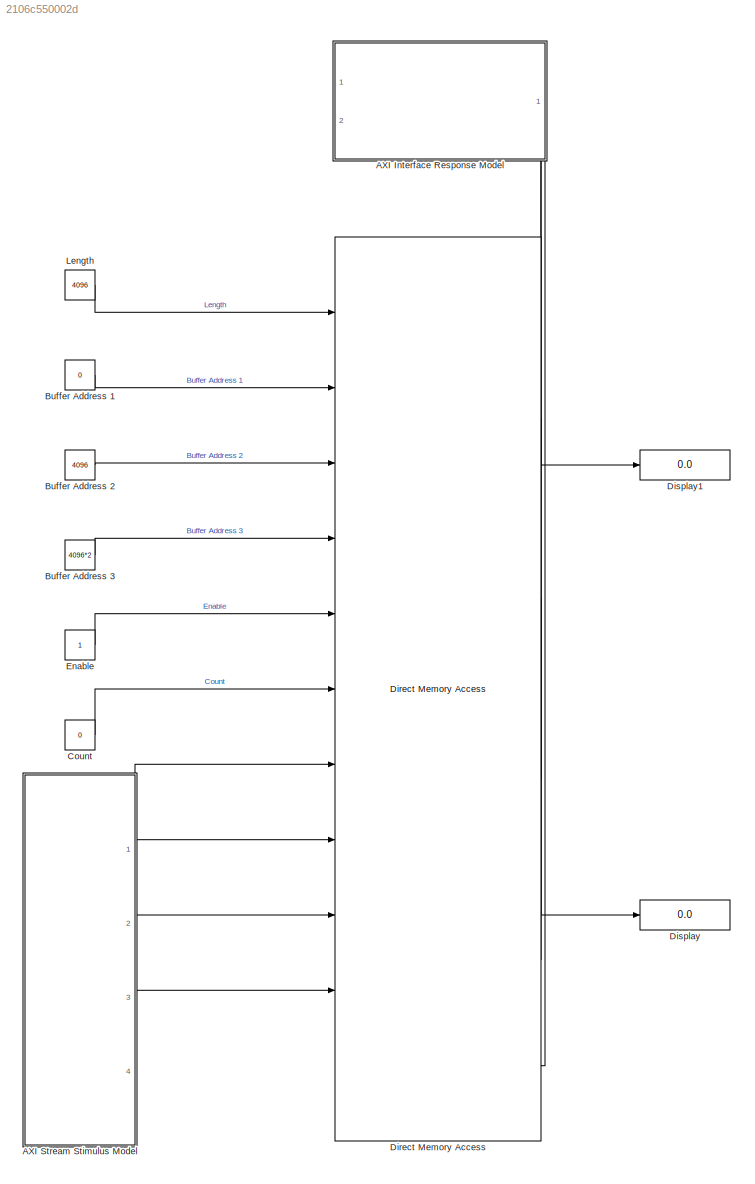
MODEL slx_2106c550002d
KIND model
CONFIG AbsTol = auto
CONFIG EnableMultiTasking = off
CONFIG FixedStep = auto
CONFIG InitFcn = fs = 256e6;
CONFIG MaxStep = auto
CONFIG MinStep = auto
CONFIG RelTol = 1e-3
CONFIG SampleTimeConstraint = Unconstrained
CONFIG Solver = VariableStepAuto
CONFIG SolverName = VariableStepAuto
CONFIG StartTime = 0.0
CONFIG StopTime = (2*8192)/256e6
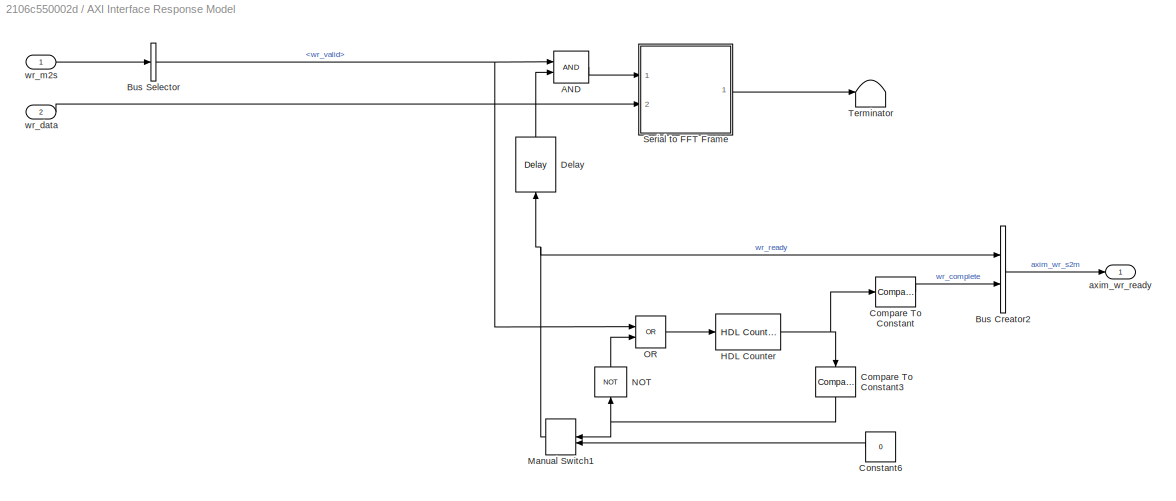
BLOCK [SubSystem] AXI Interface Response Model
  NameLocation = top
  PortSchema = {"entries":[{"content":{"sides":[{"content":{"connectorIds":[]},"type":"ConnectorPlacement.EquallySpacedRectSide","uuid":"6953abbe-a6d5-4686-b276-b89fe5e6bb23"},{"content":{"connectorIds":[],"side":"RIGHT"},"type":"ConnectorPlacement.EquallySpacedRectSide","uuid":"539ff6ac-c243-4534-87d0-888ff9534a8b"},{"content":{"connectorIds":[],"side":"TOP"},"type":"ConnectorPlacement.EquallySpacedRectSide","u...<+393ch>
  Ports = [2, 1]
  RequestExecContextInheritance = off
BLOCK [Logic] AXI Interface Response Model/AND
  AllPortsSameDT = off
  IconShape = distinctive
  OutDataTypeStr = boolean
  Ports = [2, 1]
BLOCK [BusCreator] AXI Interface Response Model/Bus Creator2
  DisplayOption = bar
  InheritFromInputs = on
  Inputs = 2
  Ports = [2, 1]
BLOCK [BusSelector] AXI Interface Response Model/Bus Selector
  OutputSignals = wr_valid
  Ports = [1, 1]
BLOCK [Reference] AXI Interface Response Model/Compare To Constant  REF=simulink/Logic and Bit
Operations/Compare
To Constant
  Ports = [1, 1]
  SourceBlock = simulink/Logic and Bit\nOperations/Compare\nTo Constant
  SourceProductBaseCode = SL
  SourceType = Compare To Constant
BLOCK [Reference] AXI Interface Response Model/Compare To Constant3  REF=simulink/Logic and Bit
Operations/Compare
To Constant
  NameLocation = left
  Ports = [1, 1]
  SourceBlock = simulink/Logic and Bit\nOperations/Compare\nTo Constant
  SourceProductBaseCode = SL
  SourceType = Compare To Constant
BLOCK [Constant] AXI Interface Response Model/Constant6
  OutDataTypeStr = boolean
  SampleTime = -1
  Value = 0
BLOCK [Delay] AXI Interface Response Model/Delay
  DelayLength = 1
  InitialCondition = 0
  InputPortMap = u0
  NameLocation = right
  Ports = [1, 1]
  UseCircularBuffer = on
  UserDataPersistent = on
BLOCK [Reference] AXI Interface Response Model/HDL Counter  REF=hdlsllib/Sources/HDL Counter
  Ports = [1, 1]
  SourceBlock = hdlsllib/Sources/HDL Counter
  SourceProductBaseCode = SL
  SourceType = HDL Counter
BLOCK [ManualSwitch] AXI Interface Response Model/Manual Switch1
  NameLocation = top
BLOCK [Logic] AXI Interface Response Model/NOT
  AllPortsSameDT = off
  IconShape = distinctive
  NameLocation = right
  Operator = NOT
  OutDataTypeStr = boolean
  Ports = [1, 1]
BLOCK [Logic] AXI Interface Response Model/OR
  AllPortsSameDT = off
  IconShape = distinctive
  Operator = OR
  OutDataTypeStr = boolean
  Ports = [2, 1]
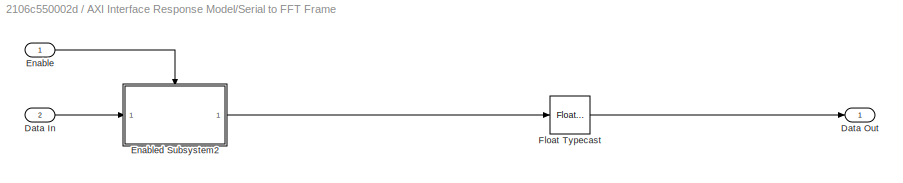
BLOCK [SubSystem] AXI Interface Response Model/Serial to FFT Frame
  Ports = [2, 1]
  RequestExecContextInheritance = off
BLOCK [Inport] AXI Interface Response Model/Serial to FFT Frame/Data In
  Port = 2
BLOCK [Outport] AXI Interface Response Model/Serial to FFT Frame/Data Out
BLOCK [Inport] AXI Interface Response Model/Serial to FFT Frame/Enable
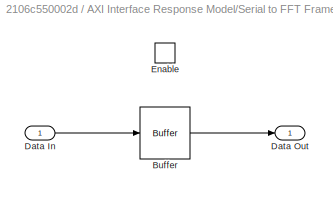
BLOCK [SubSystem] AXI Interface Response Model/Serial to FFT Frame/Enabled Subsystem2
  Ports = [1, 1, 1]
  RequestExecContextInheritance = off
  TreatAsAtomicUnit = on
BLOCK [Buffer] AXI Interface Response Model/Serial to FFT Frame/Enabled Subsystem2/Buffer
  N = N
  OutputFrames = off
BLOCK [Inport] AXI Interface Response Model/Serial to FFT Frame/Enabled Subsystem2/Data In
BLOCK [Outport] AXI Interface Response Model/Serial to FFT Frame/Enabled Subsystem2/Data Out
BLOCK [EnablePort] AXI Interface Response Model/Serial to FFT Frame/Enabled Subsystem2/Enable
  Ports = []
BLOCK [FloatTypecast] AXI Interface Response Model/Serial to FFT Frame/Float Typecast
BLOCK [Terminator] AXI Interface Response Model/Terminator
BLOCK [Outport] AXI Interface Response Model/axim_wr_ready
BLOCK [Inport] AXI Interface Response Model/wr_data
  Port = 2
BLOCK [Inport] AXI Interface Response Model/wr_m2s
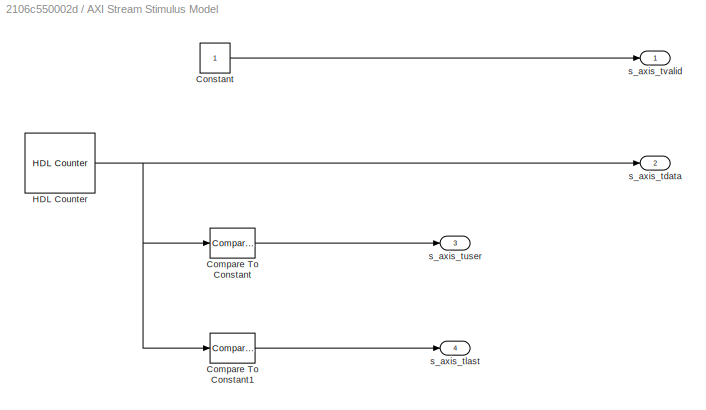
BLOCK [SubSystem] AXI Stream Stimulus Model
  Ports = [0, 4]
  RequestExecContextInheritance = off
BLOCK [Reference] AXI Stream Stimulus Model/Compare To Constant  REF=simulink/Logic and Bit
Operations/Compare
To Constant
  Ports = [1, 1]
  SourceBlock = simulink/Logic and Bit\nOperations/Compare\nTo Constant
  SourceProductBaseCode = SL
  SourceType = Compare To Constant
BLOCK [Reference] AXI Stream Stimulus Model/Compare To Constant1  REF=simulink/Logic and Bit
Operations/Compare
To Constant
  Ports = [1, 1]
  SourceBlock = simulink/Logic and Bit\nOperations/Compare\nTo Constant
  SourceProductBaseCode = SL
  SourceType = Compare To Constant
BLOCK [Constant] AXI Stream Stimulus Model/Constant
  OutDataTypeStr = boolean
  SampleTime = -1
BLOCK [Reference] AXI Stream Stimulus Model/HDL Counter  REF=hdlsllib/Sources/HDL Counter
  Ports = [0, 1]
  SourceBlock = hdlsllib/Sources/HDL Counter
  SourceProductBaseCode = SL
  SourceType = HDL Counter
BLOCK [Outport] AXI Stream Stimulus Model/s_axis_tdata
  Port = 2
BLOCK [Outport] AXI Stream Stimulus Model/s_axis_tlast
  Port = 4
BLOCK [Outport] AXI Stream Stimulus Model/s_axis_tuser
  Port = 3
BLOCK [Outport] AXI Stream Stimulus Model/s_axis_tvalid
BLOCK [Constant] Buffer Address 1
  OutDataTypeStr = uint32
  SampleTime = 1/fs
  Value = 0
BLOCK [Constant] Buffer Address 2
  OutDataTypeStr = uint32
  SampleTime = 1/fs
  Value = 4096
BLOCK [Constant] Buffer Address 3
  OutDataTypeStr = uint32
  SampleTime = 1/fs
  Value = 4096*2
BLOCK [Constant] Count
  OutDataTypeStr = uint32
  SampleTime = 1/fs
  Value = 0
BLOCK [Reference] Direct Memory Access  REF=slib_spectrum_analyser/Direct Memory Access  (lib defined in slx_9446f48c21c4, slx_d429541b2c0d)
  Ports = [11, 4]
  SourceBlock = slib_spectrum_analyser/Direct Memory Access
  SourceType = SubSystem
BLOCK [Display] Display
  Decimation = 1
  Ports = [1]
BLOCK [Display] Display1
  Decimation = 1
  Ports = [1]
BLOCK [Constant] Enable
  OutDataTypeStr = uint32
  SampleTime = 1/fs
BLOCK [Constant] Length
  OutDataTypeStr = uint32
  SampleTime = 1/fs
  Value = 4096
LINE AXI Interface Response Model/AND:1 -> AXI Interface Response Model/Serial to FFT Frame:1
LINE AXI Interface Response Model/Bus Creator2:1 -> AXI Interface Response Model/axim_wr_ready:1
NET AXI Interface Response Model/Bus Selector:1 -> AXI Interface Response Model/AND:1, AXI Interface Response Model/OR:1
NET AXI Interface Response Model/Compare To Constant3:1 -> AXI Interface Response Model/Manual Switch1:1, AXI Interface Response Model/NOT:1
LINE AXI Interface Response Model/Compare To Constant:1 -> AXI Interface Response Model/Bus Creator2:2
LINE AXI Interface Response Model/Constant6:1 -> AXI Interface Response Model/Manual Switch1:2
LINE AXI Interface Response Model/Delay:1 -> AXI Interface Response Model/AND:2
NET AXI Interface Response Model/HDL Counter:1 -> AXI Interface Response Model/Compare To Constant3:1, AXI Interface Response Model/Compare To Constant:1
NET AXI Interface Response Model/Manual Switch1:1 -> AXI Interface Response Model/Bus Creator2:1, AXI Interface Response Model/Delay:1
LINE AXI Interface Response Model/NOT:1 -> AXI Interface Response Model/OR:2
LINE AXI Interface Response Model/OR:1 -> AXI Interface Response Model/HDL Counter:1
LINE AXI Interface Response Model/Serial to FFT Frame/Data In:1 -> AXI Interface Response Model/Serial to FFT Frame/Enabled Subsystem2:1
LINE AXI Interface Response Model/Serial to FFT Frame/Enable:1 -> AXI Interface Response Model/Serial to FFT Frame/Enabled Subsystem2:enable
LINE AXI Interface Response Model/Serial to FFT Frame/Enabled Subsystem2/Buffer:1 -> AXI Interface Response Model/Serial to FFT Frame/Enabled Subsystem2/Data Out:1
LINE AXI Interface Response Model/Serial to FFT Frame/Enabled Subsystem2/Data In:1 -> AXI Interface Response Model/Serial to FFT Frame/Enabled Subsystem2/Buffer:1
LINE AXI Interface Response Model/Serial to FFT Frame/Enabled Subsystem2:1 -> AXI Interface Response Model/Serial to FFT Frame/Float Typecast:1
LINE AXI Interface Response Model/Serial to FFT Frame/Float Typecast:1 -> AXI Interface Response Model/Serial to FFT Frame/Data Out:1
LINE AXI Interface Response Model/Serial to FFT Frame:1 -> AXI Interface Response Model/Terminator:1
LINE AXI Interface Response Model/wr_data:1 -> AXI Interface Response Model/Serial to FFT Frame:2
LINE AXI Interface Response Model/wr_m2s:1 -> AXI Interface Response Model/Bus Selector:1
LINE AXI Interface Response Model:1 -> Direct Memory Access:11
LINE AXI Stream Stimulus Model/Compare To Constant1:1 -> AXI Stream Stimulus Model/s_axis_tlast:1
LINE AXI Stream Stimulus Model/Compare To Constant:1 -> AXI Stream Stimulus Model/s_axis_tuser:1
LINE AXI Stream Stimulus Model/Constant:1 -> AXI Stream Stimulus Model/s_axis_tvalid:1
NET AXI Stream Stimulus Model/HDL Counter:1 -> AXI Stream Stimulus Model/Compare To Constant1:1, AXI Stream Stimulus Model/Compare To Constant:1, AXI Stream Stimulus Model/s_axis_tdata:1
LINE AXI Stream Stimulus Model:1 -> Direct Memory Access:7
LINE AXI Stream Stimulus Model:2 -> Direct Memory Access:8
LINE AXI Stream Stimulus Model:3 -> Direct Memory Access:9
LINE AXI Stream Stimulus Model:4 -> Direct Memory Access:10
LINE Buffer Address 1:1 -> Direct Memory Access:2
LINE Buffer Address 2:1 -> Direct Memory Access:3
LINE Buffer Address 3:1 -> Direct Memory Access:4
LINE Count:1 -> Direct Memory Access:6
LINE Direct Memory Access:1 -> Display1:1
LINE Direct Memory Access:2 -> Display:1
LINE Direct Memory Access:3 -> AXI Interface Response Model:1
LINE Direct Memory Access:4 -> AXI Interface Response Model:2
LINE Enable:1 -> Direct Memory Access:5
LINE Length:1 -> Direct Memory Access:1
note: NET lines group one-source signal fan-out (src -> all destinations, sorted); 1:1 wires keep LINE
